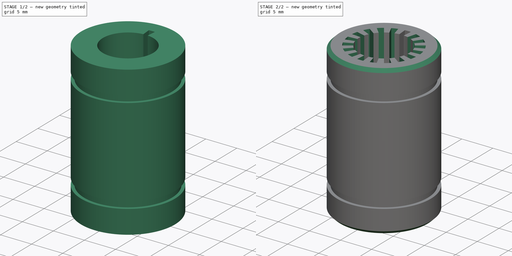
[diagram: build sequence overview — one tinted view per stage of 2, left to right]
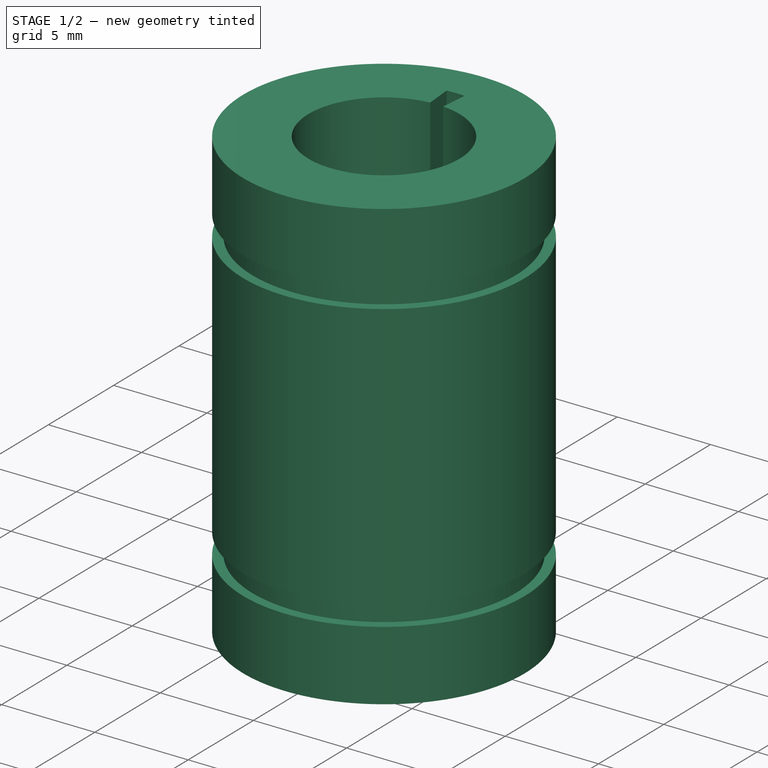
[diagram: stage 1 of 2 — iso view after this stage's code; geometry added in this stage tinted green]
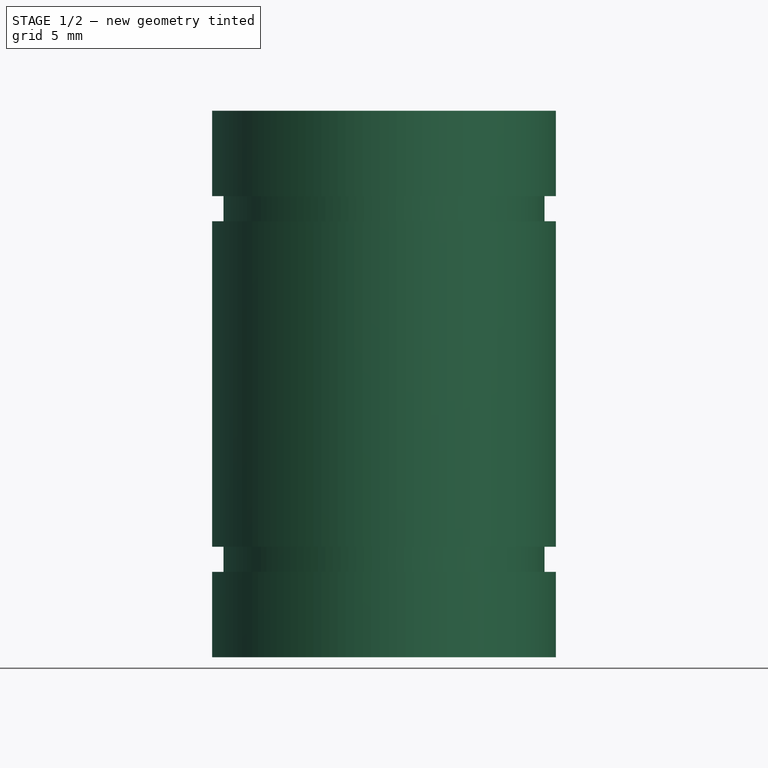
[diagram: stage 1 of 2 — front view after this stage's code; geometry added in this stage tinted green]
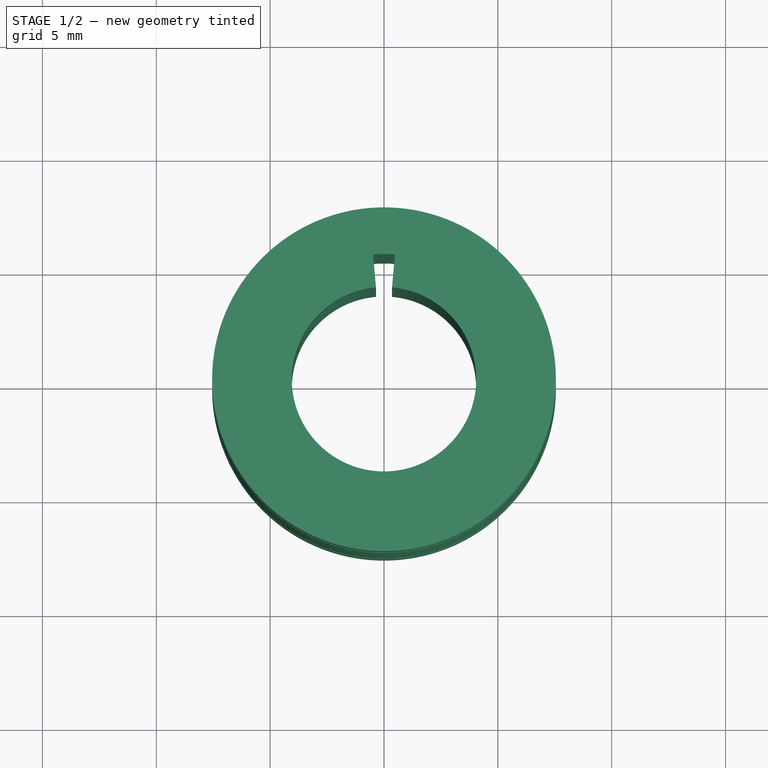
[diagram: stage 1 of 2 — top view after this stage's code; geometry added in this stage tinted green]
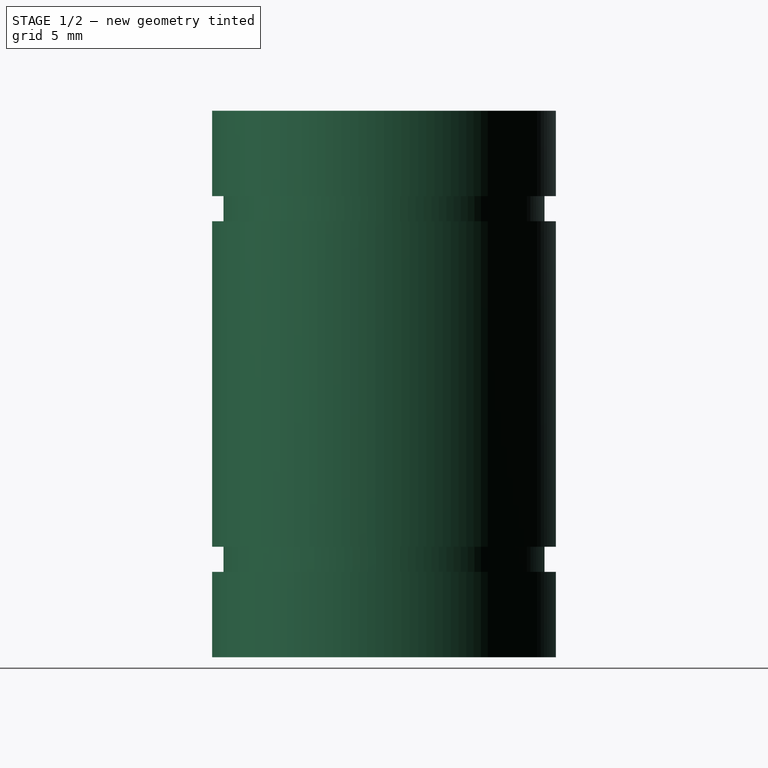
[diagram: stage 1 of 2 — right view after this stage's code; geometry added in this stage tinted green]
FCSTD DOCUMENT  (FreeCAD 0.18R15969 (Git))
Label: polybearing
License: All rights reserved
LicenseURL: http://en.wikipedia.org/wiki/All_rights_reserved
objects: Sketcher::SketchObject×2, PartDesign::Revolution×1, PartDesign::Pocket×1, PartDesign::PolarPattern×1, PartDesign::Chamfer×1, PartDesign::Body×1
note: 9 computed .brp shape members not serialized (recipe doc carries the construction recipe); baked Part::Feature solids carry a one-line shape summary decoded from their .brp

FEATURE [Sketcher::SketchObject] Sketch
  MapMode = 5
  Placement = pos=(0,0,0) rot=(1,0,0;1.5708rad)
  Support = -> [XZ_Plane]
  expr: Constraints[25] = 4 + 0.05
  expr: Constraints[24] = 7.6 - 0.05
  sketch-geometry (14):
    g0: LineSegment StartX=-7.55 StartY=7.15 StartZ=0 EndX=-7.05 EndY=7.15 EndZ=0
    g1: LineSegment StartX=-7.05 StartY=7.15 StartZ=0 EndX=-7.05 EndY=8.25 EndZ=0
    g2: LineSegment StartX=-7.05 StartY=8.25 StartZ=0 EndX=-7.55 EndY=8.25 EndZ=0
    g3: LineSegment StartX=-7.55 StartY=8.25 StartZ=0 EndX=-7.55 EndY=12 EndZ=0
    g4: LineSegment StartX=-7.55 StartY=12 StartZ=0 EndX=-4.05 EndY=12 EndZ=0
    g5: LineSegment StartX=-7.55 StartY=-7.15 StartZ=0 EndX=-7.05 EndY=-7.15 EndZ=0
    g6: LineSegment StartX=-7.05 StartY=-7.15 StartZ=0 EndX=-7.05 EndY=-8.25 EndZ=0
    g7: LineSegment StartX=-7.05 StartY=-8.25 StartZ=0 EndX=-7.55 EndY=-8.25 EndZ=0
    g8: LineSegment StartX=-7.55 StartY=-8.25 StartZ=0 EndX=-7.55 EndY=-12 EndZ=0
    g9: LineSegment StartX=-7.55 StartY=-12 StartZ=0 EndX=-4.05 EndY=-12 EndZ=0
    g10: LineSegment StartX=-4.05 StartY=12 StartZ=0 EndX=-4.05 EndY=-12 EndZ=0
    g11: LineSegment StartX=-7.55 StartY=-7.15 StartZ=0 EndX=-7.55 EndY=7.15 EndZ=0
    g12: LineSegment [constr] StartX=-4.05 StartY=12 StartZ=0 EndX=0 EndY=0 EndZ=0
    g13: LineSegment [constr] StartX=0 StartY=0 StartZ=0 EndX=-4.05 EndY=-12 EndZ=0
  constraints (40):
    c: Horizontal(g0)
    c: Coincident(g1,g0)
    c: Coincident(g2,g1)
    c: Coincident(g3,g2)
    c: Coincident(g4,g3)
    c: Horizontal(g4)
    c: Vertical(g3)
    c: Horizontal(g2)
    c: Vertical(g1)
    c: Equal(g2,g0)
    c: Horizontal(g5)
    c: Coincident(g6,g5)
    c: Coincident(g7,g6)
    c: Coincident(g8,g7)
    c: Coincident(g9,g8)
    c: Horizontal(g9)
    c: Vertical(g8)
    c: Horizontal(g7)
    c: Vertical(g6)
    c: Equal(g5,g7)
    c: Equal(g7,g0)
    c: Equal(g3,g8)
    c: Equal(g6,g1)
    c: DistanceY(g9,g4) = 24
    c: DistanceX(g3,g-1) = 7.55
    c: DistanceX(g4,g-1) = 4.05
    c: DistanceY(g7,g2) = 16.5
    c: DistanceY(g1,g1) = 1.1
    c: DistanceX(g0,g0) = 0.5
    c: Coincident(g10,g4)
    c: Coincident(g10,g9)
    c: Vertical(g10)
    c: Coincident(g11,g5)
    c: Coincident(g11,g0)
    c: Vertical(g11)
    c: Coincident(g12,g4)
    c: Coincident(g12,g-1)
    c: Coincident(g13,g-1)
    c: Coincident(g13,g9)
    c: Equal(g13,g12)
FEATURE [PartDesign::Revolution] Revolution
  Angle = 360
  Axis = (0,-2e-16,1)
  Base = (0,0,0)
  Placement = pos=(0,0,0) rot=(1,0,0;1.5708rad)
  Profile = -> Sketch
  ReferenceAxis = -> Sketch [V_Axis]
FEATURE [Sketcher::SketchObject] Sketch001
  MapMode = 5
  Support = -> [XY_Plane]
  sketch-geometry (4):
    g0: LineSegment StartX=0 StartY=0 StartZ=0 EndX=-0.479357 EndY=5.47907 EndZ=0
    g1: LineSegment [constr] StartX=-0.479357 StartY=5.47907 StartZ=0 EndX=0.479357 EndY=5.47907 EndZ=0
    g2: LineSegment StartX=0.479357 StartY=5.47907 StartZ=0 EndX=0 EndY=0 EndZ=0
    g3: ArcOfCircle CenterX=0 CenterY=0 CenterZ=0 NormalX=0 NormalY=0 NormalZ=1 AngleXU=0 Radius=5.5 StartAngle=1.48353 EndAngle=1.65806
  constraints (11):
    c: Coincident(g0,g-1)
    c: Coincident(g1,g0)
    c: Horizontal(g1)
    c: Coincident(g2,g1)
    c: Coincident(g2,g0)
    c: Equal(g2,g0)
    c: Coincident(g3,g0)
    c: Coincident(g3,g0)
    c: Coincident(g3,g2)
    c: Radius(g3) = 5.5
    c: Angle(g2,g0) = 0.174533
FEATURE [PartDesign::Pocket] Pocket
  BaseFeature = -> Revolution
  Length = 5
  Length2 = 100
  Midplane = true
  Placement = pos=(0,0,0) rot=(1,0,0;1.5708rad)
  Profile = -> Sketch001
  Type = 1
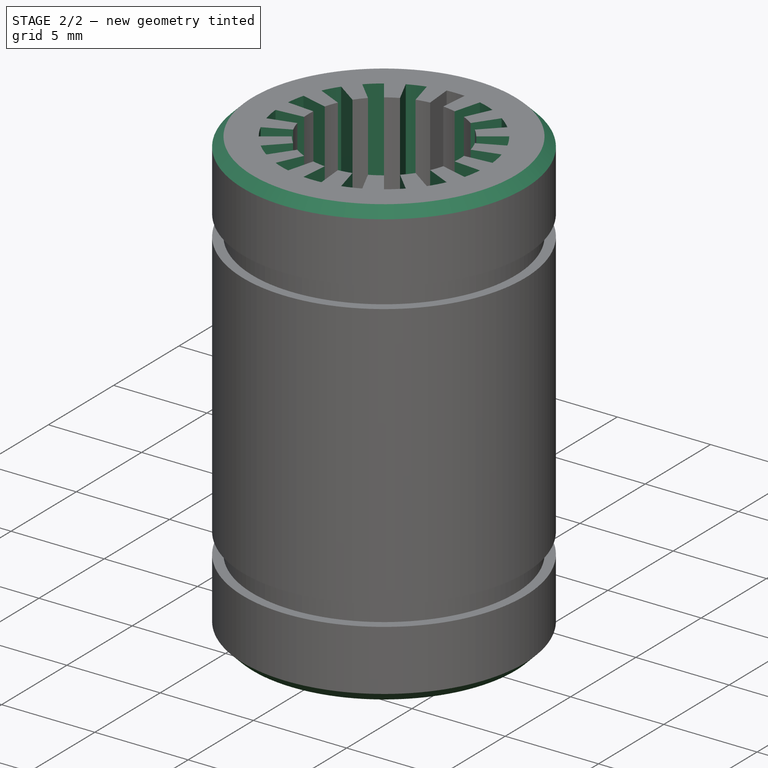
[diagram: stage 2 of 2 — iso view after this stage's code; geometry added in this stage tinted green]
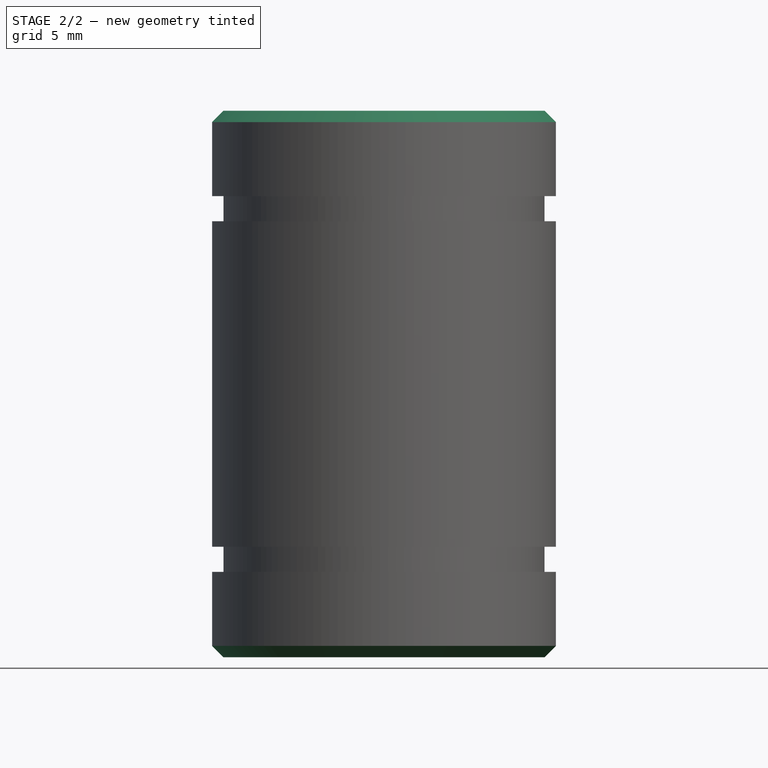
[diagram: stage 2 of 2 — front view after this stage's code; geometry added in this stage tinted green]
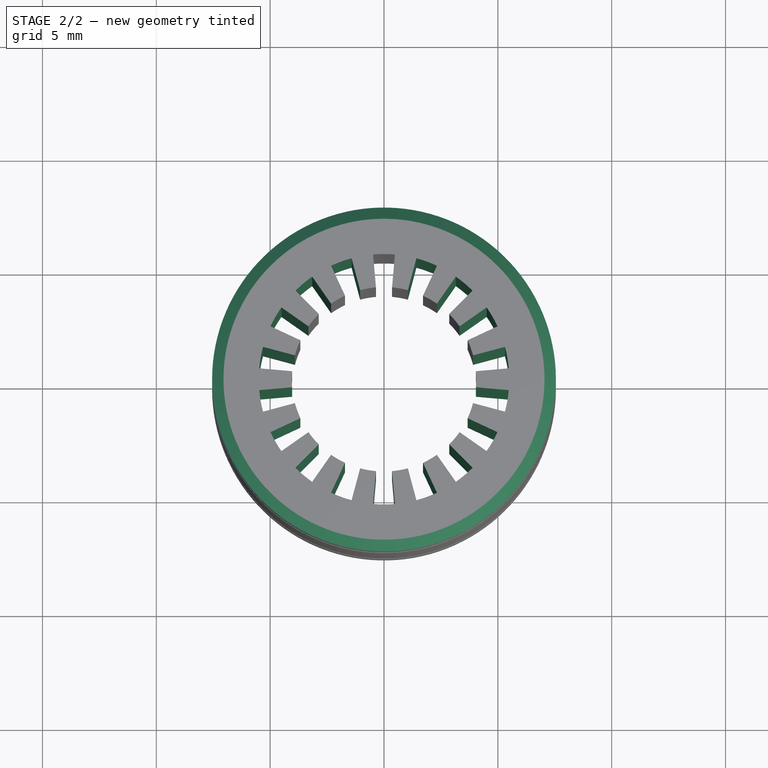
[diagram: stage 2 of 2 — top view after this stage's code; geometry added in this stage tinted green]
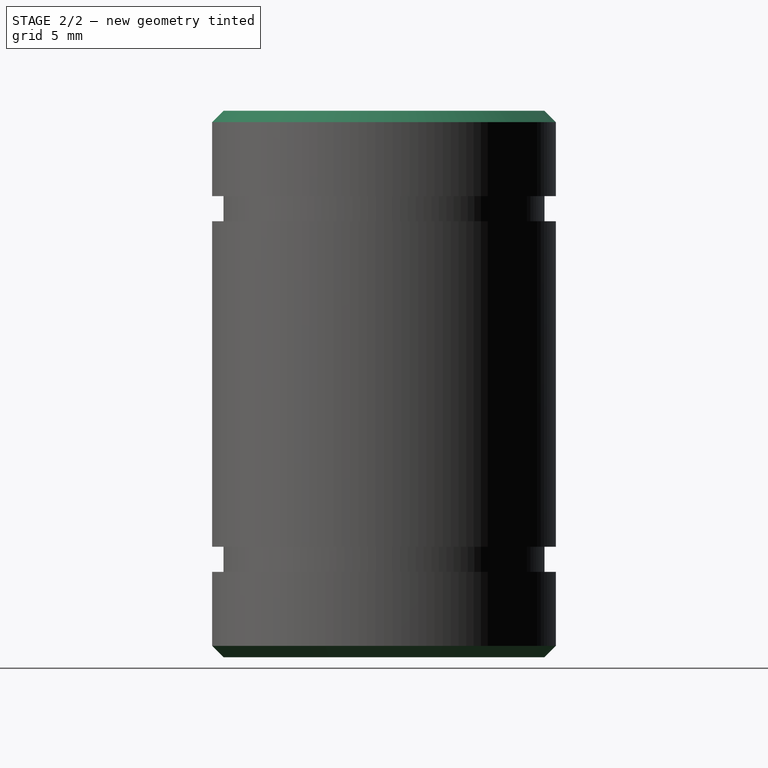
[diagram: stage 2 of 2 — right view after this stage's code; geometry added in this stage tinted green]
FEATURE [PartDesign::PolarPattern] PolarPattern
  Angle = 360
  Axis = -> Sketch001 [N_Axis]
  BaseFeature = -> Pocket
  Occurrences = 18
  Originals = -> [Pocket]
  Placement = pos=(0,0,0) rot=(1,0,0;1.5708rad)
FEATURE [PartDesign::Chamfer] Chamfer
  Base = -> PolarPattern [Edge14,Edge12]
  BaseFeature = -> PolarPattern
  Placement = pos=(0,0,0) rot=(1,0,0;1.5708rad)
  Size = 0.5
FEATURE [PartDesign::Body] Body
  Group = -> [Sketch,Revolution,Sketch001,Pocket,PolarPattern,Chamfer]
  Origin = -> Origin
  Tip = -> Chamfer
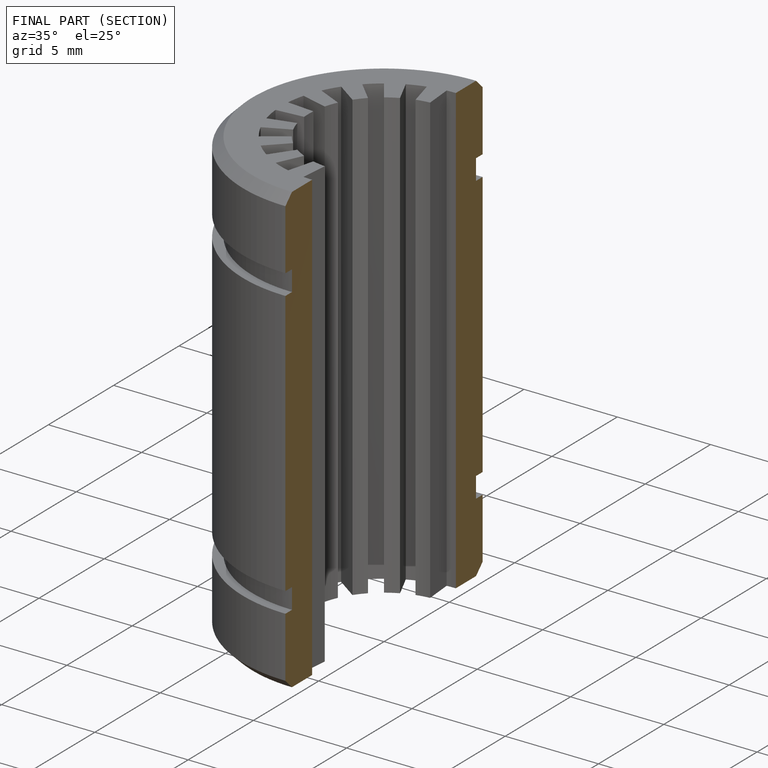
[diagram: finished part — half-section view (interior)]
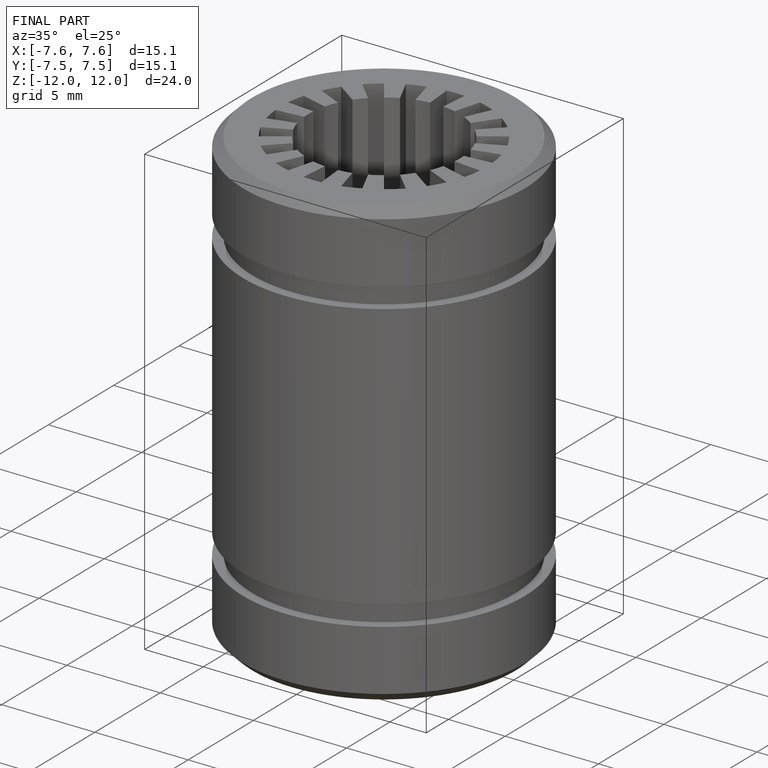
[diagram: finished part — iso view with bounding-box wireframe]
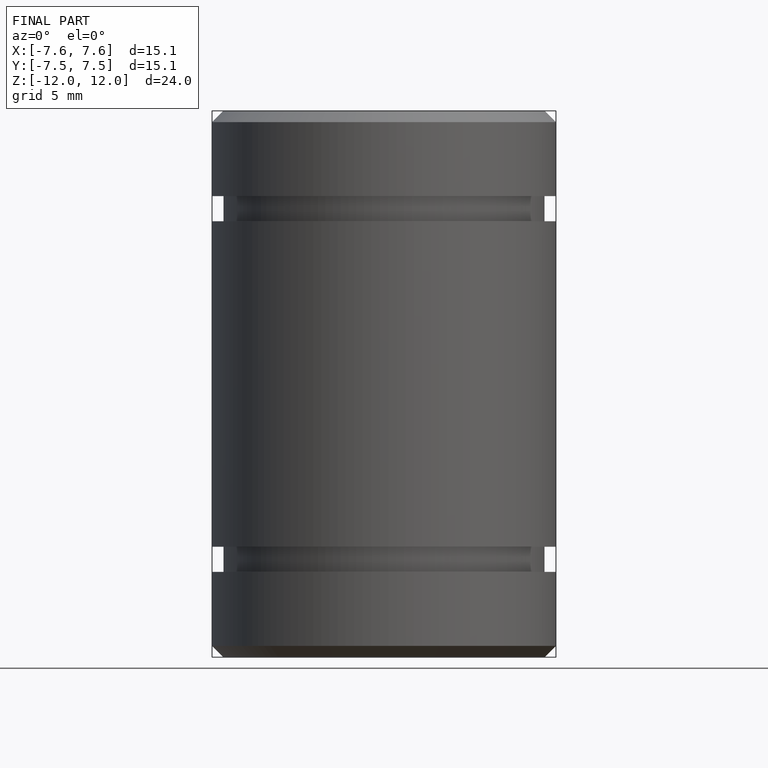
[diagram: finished part — front view with bounding-box wireframe]
